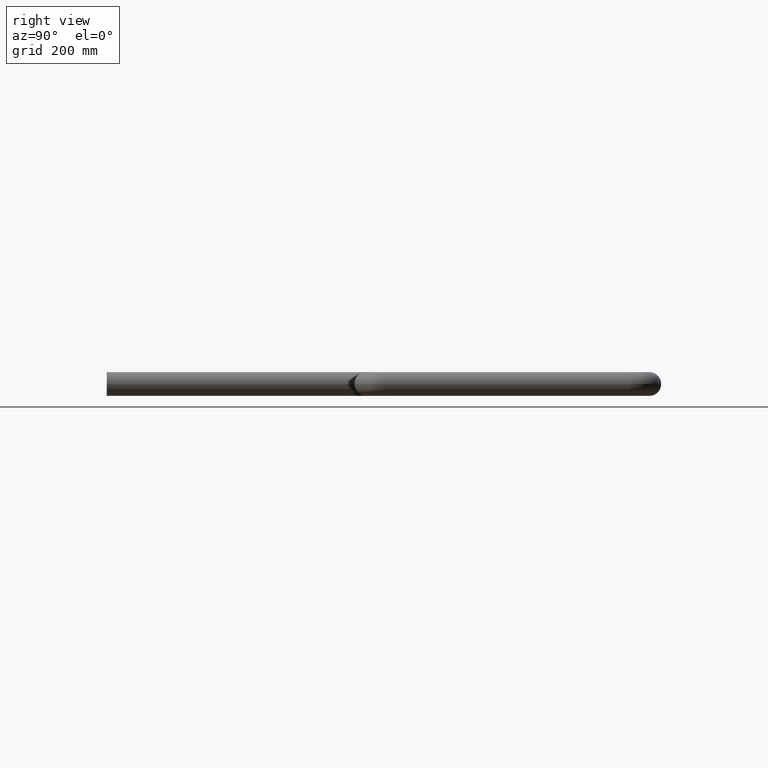
[diagram: clean part render]
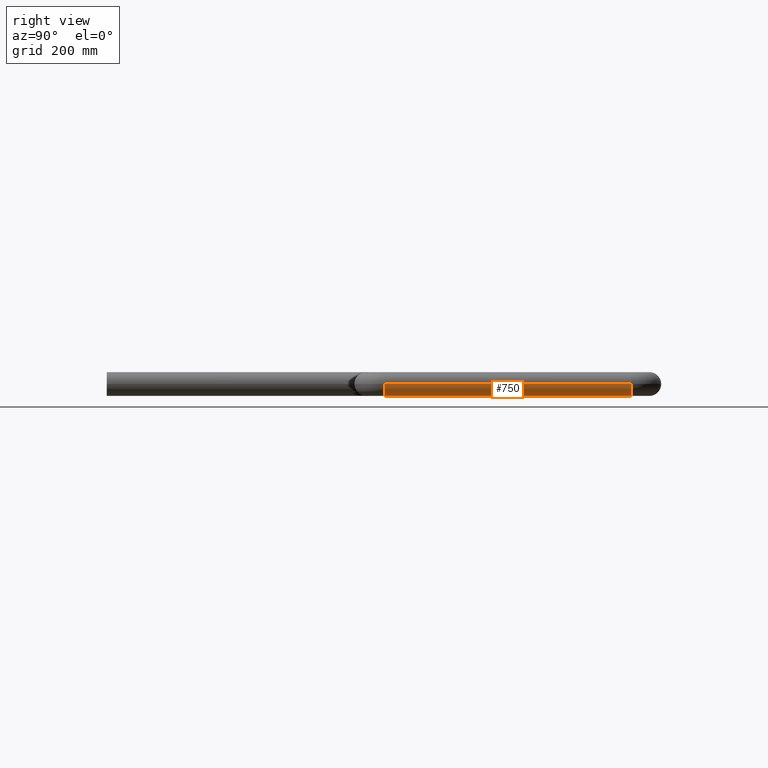
[diagram: same view with one face highlighted and labeled with its STEP entity id]
A machine part, right view. The second image highlights one B-rep face of the part: STEP entity #750.
In plain terms, the highlighted cylindrical surface (edge-blend (fillet) strip) has radius 21.2 mm, axis along (-0, 1, 0).
Its self-contained STEP definition (entity closure, byte-faithful):
#59 = EDGE_LOOP ( 'NONE', ( #667, #1166, #746, #693 ) ) ;
#88 = LINE ( 'NONE', #522, #1377 ) ;
#100 = DIRECTION ( 'NONE',  ( 1.273191542001325331E-16, -1.000000000000000000, 0.000000000000000000 ) ) ;
#109 = VERTEX_POINT ( 'NONE', #303 ) ;
#142 = CARTESIAN_POINT ( 'NONE',  ( 378.7999999999999545, 491.0000000000001705, 0.000000000000000000 ) ) ;
#251 = EDGE_CURVE ( 'NONE', #781, #109, #770, .T. ) ;
#301 = EDGE_CURVE ( 'NONE', #867, #1258, #1013, .T. ) ;
#303 = CARTESIAN_POINT ( 'NONE',  ( 421.1999999999999318, 927.0000000000004547, 2.596251214192389164E-15 ) ) ;
#314 = CARTESIAN_POINT ( 'NONE',  ( 399.9999999999998863, 927.0000000000004547, 0.000000000000000000 ) ) ;
#359 = FACE_OUTER_BOUND ( 'NONE', #59, .T. ) ;
#363 = EDGE_CURVE ( 'NONE', #1258, #109, #88, .T. ) ;
#389 = CYLINDRICAL_SURFACE ( 'NONE', #400, 21.19999999999999574 ) ;
#400 = AXIS2_PLACEMENT_3D ( 'NONE', #811, #519, #1022 ) ;
#466 = DIRECTION ( 'NONE',  ( -1.273191542001325331E-16, 1.000000000000000000, -0.000000000000000000 ) ) ;
#519 = DIRECTION ( 'NONE',  ( -1.273191542001325331E-16, 1.000000000000000000, -0.000000000000000000 ) ) ;
#522 = CARTESIAN_POINT ( 'NONE',  ( 421.1999999999999886, 491.0000000000001705, 2.596251214192388770E-15 ) ) ;
#568 = LINE ( 'NONE', #142, #619 ) ;
#619 = VECTOR ( 'NONE', #466, 1000.000000000000000 ) ;
#667 = ORIENTED_EDGE ( 'NONE', *, *, #363, .F. ) ;
#675 = AXIS2_PLACEMENT_3D ( 'NONE', #314, #727, #1282 ) ;
#693 = ORIENTED_EDGE ( 'NONE', *, *, #251, .T. ) ;
#727 = DIRECTION ( 'NONE',  ( 1.273191542001325331E-16, -1.000000000000000000, 0.000000000000000000 ) ) ;
#746 = ORIENTED_EDGE ( 'NONE', *, *, #895, .T. ) ;
#750 = ADVANCED_FACE ( 'NONE', ( #359 ), #389, .T. ) ;
#770 = CIRCLE ( 'NONE', #675, 21.19999999999999574 ) ;
#781 = VERTEX_POINT ( 'NONE', #1238 ) ;
#811 = CARTESIAN_POINT ( 'NONE',  ( 399.9999999999999432, 491.0000000000001705, 0.000000000000000000 ) ) ;
#855 = DIRECTION ( 'NONE',  ( 1.000000000000000000, 0.000000000000000000, 0.000000000000000000 ) ) ;
#867 = VERTEX_POINT ( 'NONE', #1142 ) ;
#895 = EDGE_CURVE ( 'NONE', #867, #781, #568, .T. ) ;
#1013 = CIRCLE ( 'NONE', #1039, 21.19999999999999574 ) ;
#1022 = DIRECTION ( 'NONE',  ( -1.000000000000000000, 0.000000000000000000, 0.000000000000000000 ) ) ;
#1039 = AXIS2_PLACEMENT_3D ( 'NONE', #1055, #100, #855 ) ;
#1055 = CARTESIAN_POINT ( 'NONE',  ( 399.9999999999999432, 491.0000000000001705, 0.000000000000000000 ) ) ;
#1142 = CARTESIAN_POINT ( 'NONE',  ( 378.7999999999999545, 491.0000000000001705, 0.000000000000000000 ) ) ;
#1166 = ORIENTED_EDGE ( 'NONE', *, *, #301, .F. ) ;
#1216 = CARTESIAN_POINT ( 'NONE',  ( 421.1999999999999886, 491.0000000000001705, 2.596251214192396264E-15 ) ) ;
#1238 = CARTESIAN_POINT ( 'NONE',  ( 378.7999999999998977, 927.0000000000004547, 0.000000000000000000 ) ) ;
#1251 = DIRECTION ( 'NONE',  ( -1.273191542001325331E-16, 1.000000000000000000, -0.000000000000000000 ) ) ;
#1258 = VERTEX_POINT ( 'NONE', #1216 ) ;
#1282 = DIRECTION ( 'NONE',  ( 1.000000000000000000, 0.000000000000000000, 0.000000000000000000 ) ) ;
#1377 = VECTOR ( 'NONE', #1251, 1000.000000000000000 ) ;